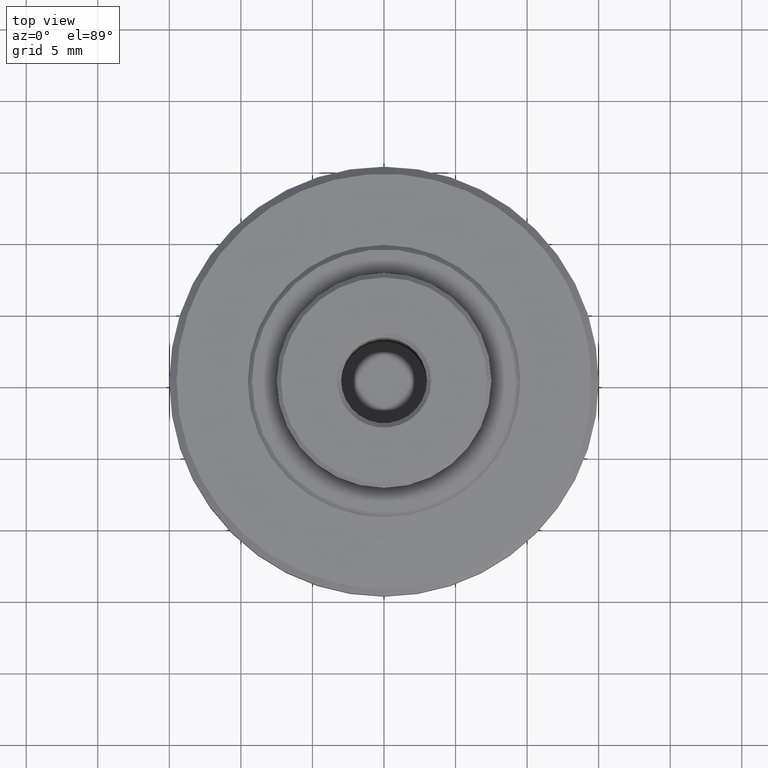
[diagram: clean part render]
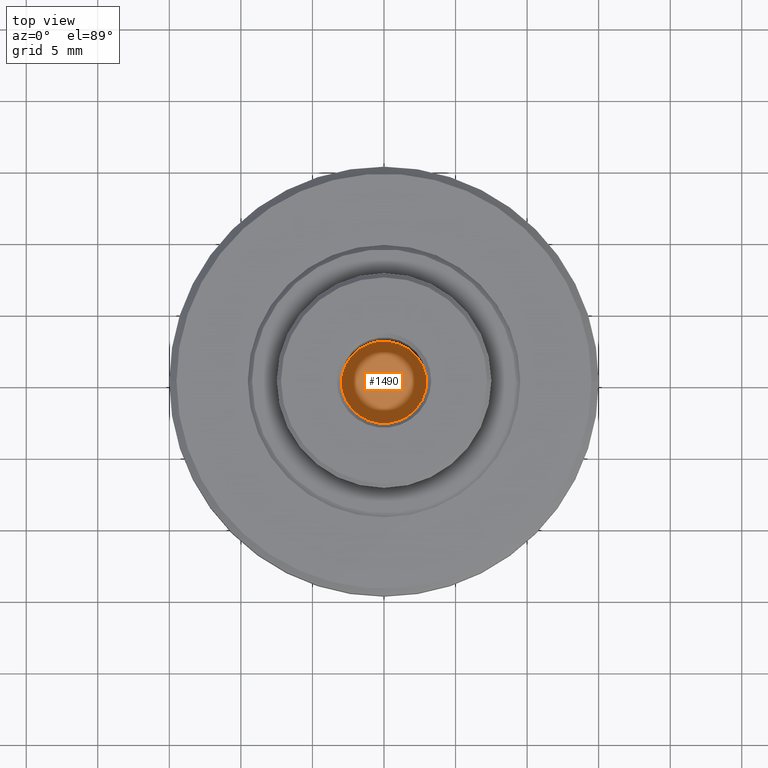
[diagram: same view with one face highlighted and labeled with its STEP entity id]
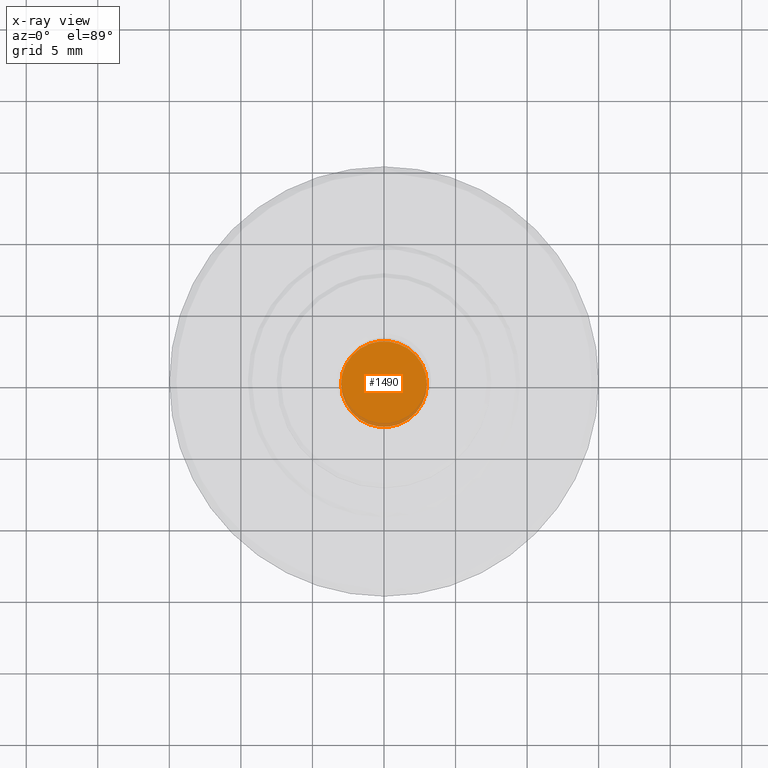
[diagram: x-ray of the same camera — body ghosted, the highlighted face saturated]
A machine part, top view. The second image highlights one B-rep face of the part: STEP entity #1490.
The next image is the same camera in x-ray: the body ghosted, the highlighted face saturated — about 5% of this face is hidden behind the body in this view.
In plain terms, the highlighted planar face has unit normal (0, 0, -1).
Its self-contained STEP definition (entity closure, byte-faithful):
#92 = CARTESIAN_POINT ( 'NONE',  ( 0.0000000000000000000, 0.0000000000000000000, 0.7500000000000006700 ) ) ;
#124 = ORIENTED_EDGE ( 'NONE', *, *, #1196, .T. ) ;
#266 = DIRECTION ( 'NONE',  ( 1.000000000000000000, 0.0000000000000000000, 0.0000000000000000000 ) ) ;
#323 = CARTESIAN_POINT ( 'NONE',  ( 3.000000000000000000, 0.0000000000000000000, 0.7500000000000006700 ) ) ;
#380 = AXIS2_PLACEMENT_3D ( 'NONE', #92, #1307, #266 ) ;
#422 = DIRECTION ( 'NONE',  ( -0.0000000000000000000, -0.0000000000000000000, 1.000000000000000000 ) ) ;
#498 = DIRECTION ( 'NONE',  ( 0.0000000000000000000, 0.0000000000000000000, -1.000000000000000000 ) ) ;
#549 = EDGE_CURVE ( 'NONE', #1447, #578, #739, .T. ) ;
#578 = VERTEX_POINT ( 'NONE', #963 ) ;
#687 = CARTESIAN_POINT ( 'NONE',  ( 0.0000000000000000000, 3.000000000000000000, 0.7500000000000006700 ) ) ;
#728 = AXIS2_PLACEMENT_3D ( 'NONE', #1464, #422, #1632 ) ;
#739 = CIRCLE ( 'NONE', #728, 3.000000000000000000 ) ;
#783 = EDGE_LOOP ( 'NONE', ( #1024, #124 ) ) ;
#816 = AXIS2_PLACEMENT_3D ( 'NONE', #687, #498, #1042 ) ;
#851 = FACE_OUTER_BOUND ( 'NONE', #783, .T. ) ;
#963 = CARTESIAN_POINT ( 'NONE',  ( -3.000000000000000000, 3.673940397442059900E-016, 0.7500000000000006700 ) ) ;
#1024 = ORIENTED_EDGE ( 'NONE', *, *, #549, .T. ) ;
#1042 = DIRECTION ( 'NONE',  ( -1.000000000000000000, 0.0000000000000000000, -0.0000000000000000000 ) ) ;
#1196 = EDGE_CURVE ( 'NONE', #578, #1447, #1669, .T. ) ;
#1307 = DIRECTION ( 'NONE',  ( -0.0000000000000000000, -0.0000000000000000000, 1.000000000000000000 ) ) ;
#1447 = VERTEX_POINT ( 'NONE', #323 ) ;
#1464 = CARTESIAN_POINT ( 'NONE',  ( 0.0000000000000000000, 0.0000000000000000000, 0.7500000000000006700 ) ) ;
#1490 = ADVANCED_FACE ( 'NONE', ( #851 ), #2050, .F. ) ;
#1632 = DIRECTION ( 'NONE',  ( 1.000000000000000000, 0.0000000000000000000, 0.0000000000000000000 ) ) ;
#1669 = CIRCLE ( 'NONE', #380, 3.000000000000000000 ) ;
#2050 = PLANE ( 'NONE',  #816 ) ;